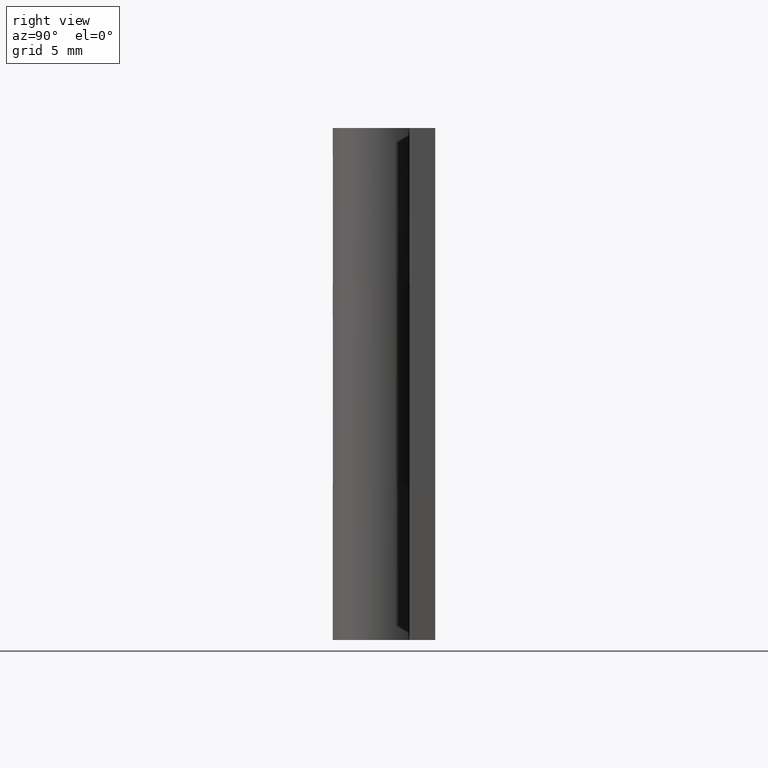
[diagram: clean part render]
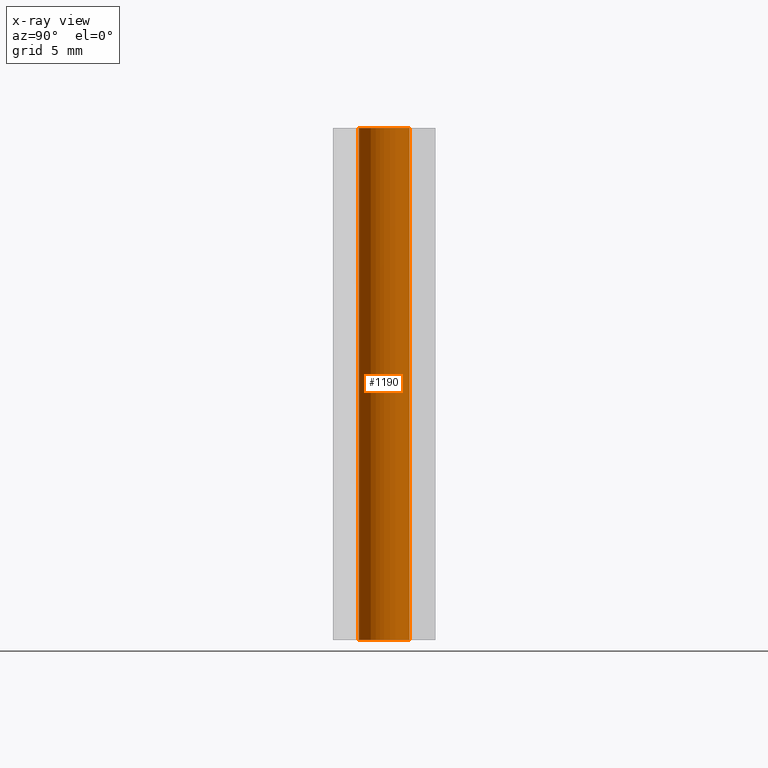
[diagram: x-ray — body ghosted, one internal face saturated and labeled with its STEP entity id]
A machine part, right view, then the same camera in x-ray: the body is ghosted and one INTERNAL B-rep face — a face not visible from any outside direction — is saturated and labeled: STEP entity #1190.
In plain terms, the highlighted face is a freeform B-spline surface patch.
Its self-contained STEP definition (entity closure, byte-faithful):
#1088=CARTESIAN_POINT('',(0.118034234656758,-0.993009526363666,20.500000000000004));
#1089=CARTESIAN_POINT('',(0.089614728637978,-0.996387615448606,20.500000000000000));
#1090=CARTESIAN_POINT('',(0.061048539534857,-0.998134798421867,20.500000000000000));
#1091=CARTESIAN_POINT('',(-0.937086258887010,-1.059183337956724,20.500000000000007));
#1092=CARTESIAN_POINT('',(-0.998134798421867,-0.061048539534857,20.500000000000000));
#1093=CARTESIAN_POINT('',(-1.059183337956724,0.937086258887010,20.500000000000007));
#1094=CARTESIAN_POINT('',(-0.061048539534857,0.998134798421867,20.500000000000000));
#1095=CARTESIAN_POINT('',(0.118034234656758,-0.993009526363666,-0.512500000000003));
#1096=CARTESIAN_POINT('',(0.089614728637978,-0.996387615448606,-0.512500000000003));
#1097=CARTESIAN_POINT('',(0.061048539534857,-0.998134798421867,-0.512500000000003));
#1098=CARTESIAN_POINT('',(-0.937086258887010,-1.059183337956724,-0.512500000000003));
#1099=CARTESIAN_POINT('',(-0.998134798421867,-0.061048539534857,-0.512500000000003));
#1100=CARTESIAN_POINT('',(-1.059183337956724,0.937086258887010,-0.512500000000003));
#1101=CARTESIAN_POINT('',(-0.061048539534857,0.998134798421867,-0.512500000000003));
#1109=(BOUNDED_SURFACE()B_SPLINE_SURFACE(2,1,((#1088,#1095),(#1089,#1096),(#1090,#1097),(#1091,#1098),(#1092,#1099),(#1093,#1100),(#1094,#1101)),.UNSPECIFIED.,.F.,.F.,.U.)B_SPLINE_SURFACE_WITH_KNOTS((3,2,2,3),(2,2),(3.078760800517997,3.141592653589793,4.712388980384690,6.283185307179586),(0.0,21.012500000000010),.UNSPECIFIED.)GEOMETRIC_REPRESENTATION_ITEM()RATIONAL_B_SPLINE_SURFACE(((0.977505800795127,0.977505800795127),(0.988284271247462,0.988284271247462),(1.0,1.0),(0.707106781186548,0.707106781186548),(1.0,1.0),(0.707106781186548,0.707106781186548),(1.0,1.0)))REPRESENTATION_ITEM('')SURFACE());
#1110=CARTESIAN_POINT('',(0.118034234664601,-0.993009526362734,5.678856E-017));
#1111=VERTEX_POINT('',#1110);
#1112=CARTESIAN_POINT('',(-1.0,0.0,0.0));
#1113=VERTEX_POINT('',#1112);
#1114=CARTESIAN_POINT('',(0.118034234664601,-0.993009526362734,5.678856E-017));
#1115=CARTESIAN_POINT('',(0.059224119659835,-1.0,0.0));
#1116=CARTESIAN_POINT('',(0.0,-1.0,0.0));
#1117=CARTESIAN_POINT('',(-1.0,-1.0,0.0));
#1118=CARTESIAN_POINT('',(-1.0,0.0,0.0));
#1126=(BOUNDED_CURVE()B_SPLINE_CURVE(2,(#1114,#1115,#1116,#1117,#1118),.UNSPECIFIED.,.F.,.U.)B_SPLINE_CURVE_WITH_KNOTS((3,2,3),(0.229562473512975,0.250000000000000,0.500000000000000),.UNSPECIFIED.)CURVE()GEOMETRIC_REPRESENTATION_ITEM()RATIONAL_B_SPLINE_CURVE((0.956026754182654,0.976055948330520,1.0,0.707106781186548,1.0))REPRESENTATION_ITEM(''));
#1127=EDGE_CURVE('',#1111,#1113,#1126,.T.);
#1128=ORIENTED_EDGE('',*,*,#1127,.F.);
#1129=CARTESIAN_POINT('',(0.118034234664601,-0.993009526362734,20.0));
#1130=VERTEX_POINT('',#1129);
#1131=CARTESIAN_POINT('',(0.118034234664601,-0.993009526362734,20.0));
#1132=CARTESIAN_POINT('',(0.118034234664601,-0.993009526362734,5.678856E-017));
#1133=QUASI_UNIFORM_CURVE('',1,(#1131,#1132),.UNSPECIFIED.,.F.,.U.);
#1134=EDGE_CURVE('',#1130,#1111,#1133,.T.);
#1135=ORIENTED_EDGE('',*,*,#1134,.F.);
#1136=CARTESIAN_POINT('',(-1.0,0.0,20.0));
#1137=VERTEX_POINT('',#1136);
#1138=CARTESIAN_POINT('',(0.118034234664601,-0.993009526362734,20.0));
#1139=CARTESIAN_POINT('',(0.059224119659835,-1.0,19.999999999999996));
#1140=CARTESIAN_POINT('',(0.0,-1.0,20.0));
#1141=CARTESIAN_POINT('',(-1.0,-1.0,19.999999999999996));
#1142=CARTESIAN_POINT('',(-1.0,0.0,20.0));
#1150=(BOUNDED_CURVE()B_SPLINE_CURVE(2,(#1138,#1139,#1140,#1141,#1142),.UNSPECIFIED.,.F.,.U.)B_SPLINE_CURVE_WITH_KNOTS((3,2,3),(0.229562473512975,0.250000000000000,0.500000000000000),.UNSPECIFIED.)CURVE()GEOMETRIC_REPRESENTATION_ITEM()RATIONAL_B_SPLINE_CURVE((0.956026754182654,0.976055948330520,1.0,0.707106781186548,1.0))REPRESENTATION_ITEM(''));
#1151=EDGE_CURVE('',#1130,#1137,#1150,.T.);
#1152=ORIENTED_EDGE('',*,*,#1151,.T.);
#1153=CARTESIAN_POINT('',(-0.061048539586870,0.998134798418686,20.0));
#1154=VERTEX_POINT('',#1153);
#1155=CARTESIAN_POINT('',(-1.0,0.0,20.0));
#1156=CARTESIAN_POINT('',(-1.0,0.940706066807474,20.000000000000004));
#1157=CARTESIAN_POINT('',(-0.061048539586870,0.998134798418686,20.0));
#1165=(BOUNDED_CURVE()B_SPLINE_CURVE(2,(#1155,#1156,#1157),.UNSPECIFIED.,.F.,.U.)B_SPLINE_CURVE_WITH_KNOTS((3,3),(0.500000000000000,0.739332962223986),.UNSPECIFIED.)CURVE()GEOMETRIC_REPRESENTATION_ITEM()RATIONAL_B_SPLINE_CURVE((1.0,0.719603993304233,0.976072041634662))REPRESENTATION_ITEM(''));
#1166=EDGE_CURVE('',#1137,#1154,#1165,.T.);
#1167=ORIENTED_EDGE('',*,*,#1166,.T.);
#1168=CARTESIAN_POINT('',(-0.061048539586870,0.998134798418686,5.551115E-017));
#1169=VERTEX_POINT('',#1168);
#1170=CARTESIAN_POINT('',(-0.061048539586870,0.998134798418686,20.0));
#1171=CARTESIAN_POINT('',(-0.061048539586870,0.998134798418686,5.551115E-017));
#1172=QUASI_UNIFORM_CURVE('',1,(#1170,#1171),.UNSPECIFIED.,.F.,.U.);
#1173=EDGE_CURVE('',#1154,#1169,#1172,.T.);
#1174=ORIENTED_EDGE('',*,*,#1173,.T.);
#1175=CARTESIAN_POINT('',(-1.0,0.0,0.0));
#1176=CARTESIAN_POINT('',(-1.0,0.940706066807474,0.0));
#1177=CARTESIAN_POINT('',(-0.061048539586870,0.998134798418686,5.551115E-017));
#1185=(BOUNDED_CURVE()B_SPLINE_CURVE(2,(#1175,#1176,#1177),.UNSPECIFIED.,.F.,.U.)B_SPLINE_CURVE_WITH_KNOTS((3,3),(0.500000000000000,0.739332962223986),.UNSPECIFIED.)CURVE()GEOMETRIC_REPRESENTATION_ITEM()RATIONAL_B_SPLINE_CURVE((1.0,0.719603993304233,0.976072041634662))REPRESENTATION_ITEM(''));
#1186=EDGE_CURVE('',#1113,#1169,#1185,.T.);
#1187=ORIENTED_EDGE('',*,*,#1186,.F.);
#1188=EDGE_LOOP('',(#1128,#1135,#1152,#1167,#1174,#1187));
#1189=FACE_OUTER_BOUND('',#1188,.T.);
#1190=ADVANCED_FACE('',(#1189),#1109,.T.);